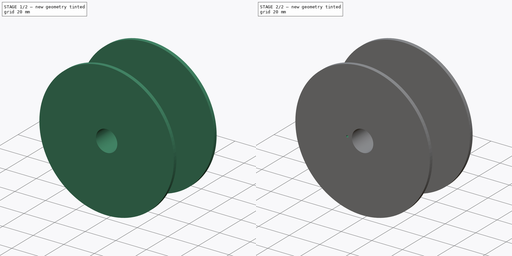
[diagram: build sequence overview — one tinted view per stage of 2, left to right]
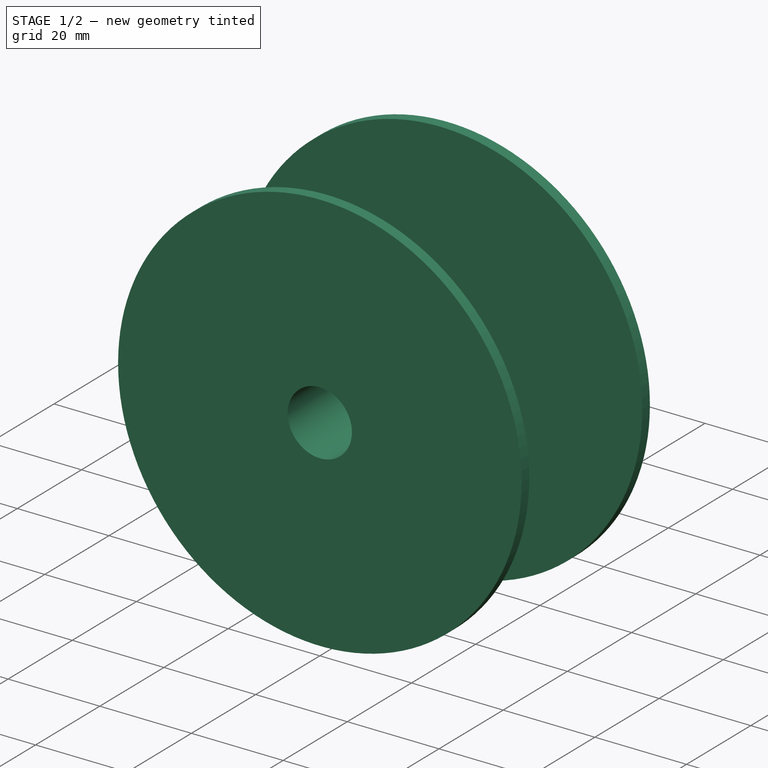
[diagram: stage 1 of 2 — iso view after this stage's code; geometry added in this stage tinted green]
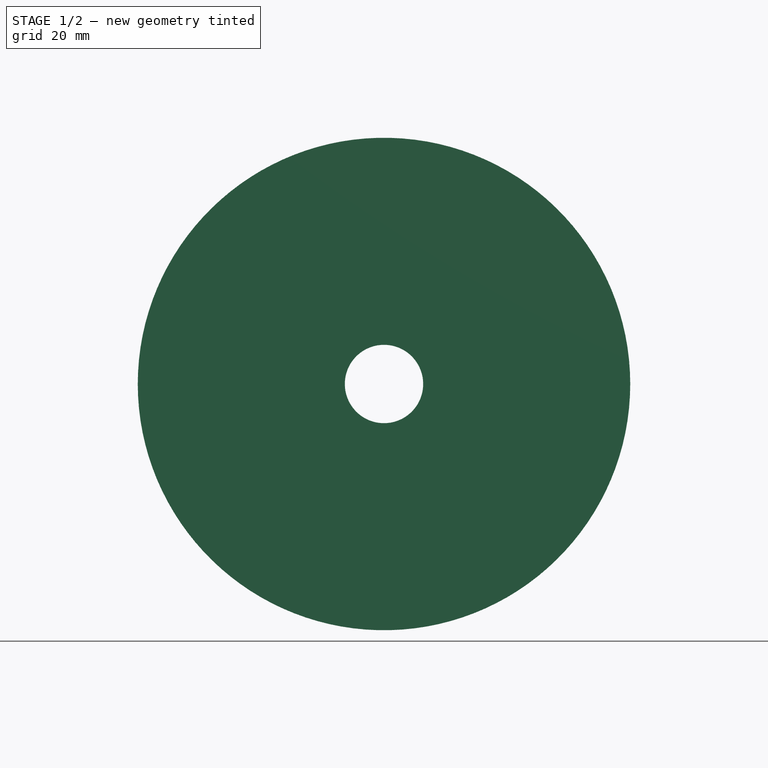
[diagram: stage 1 of 2 — front view after this stage's code; geometry added in this stage tinted green]
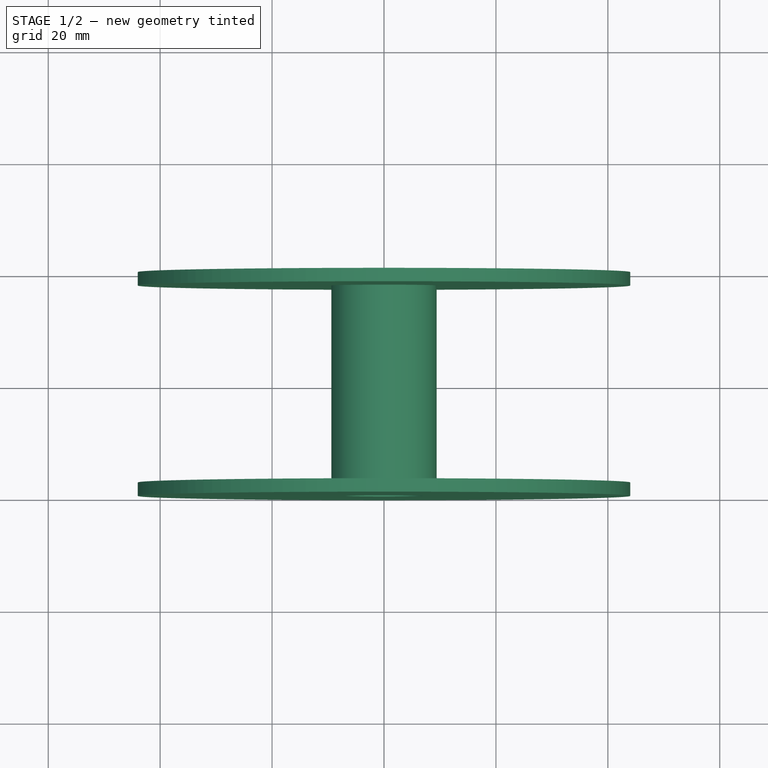
[diagram: stage 1 of 2 — top view after this stage's code; geometry added in this stage tinted green]
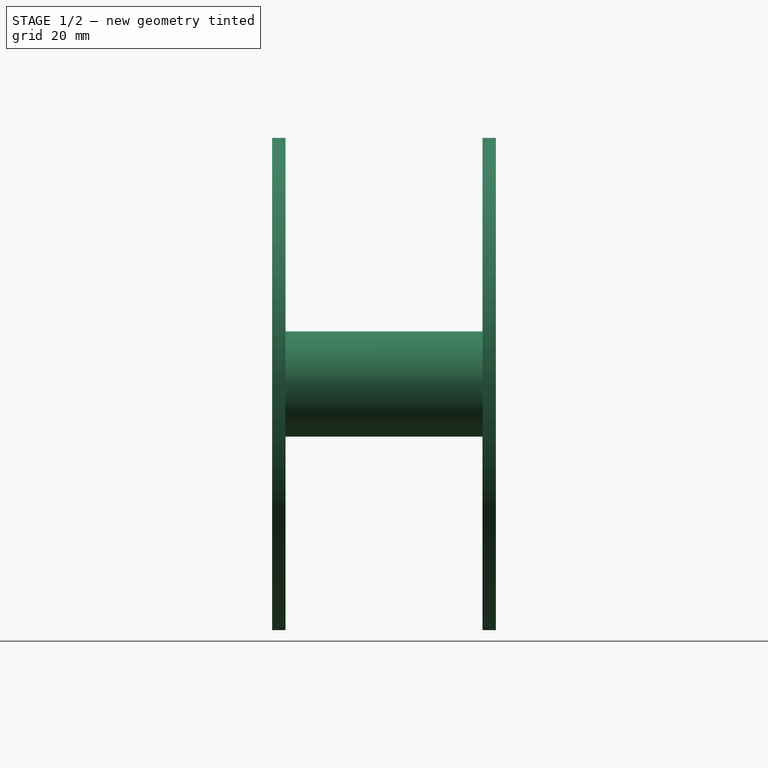
[diagram: stage 1 of 2 — right view after this stage's code; geometry added in this stage tinted green]
FCSTD DOCUMENT  (FreeCAD 0.19R24276 (Git))
Label: CableRoller
License: All rights reserved
LicenseURL: http://en.wikipedia.org/wiki/All_rights_reserved
objects: Sketcher::SketchObject×2, PartDesign::Hole×2, PartDesign::Revolution×1, PartDesign::Body×1
note: 9 computed .brp shape members not serialized (recipe doc carries the construction recipe); baked Part::Feature solids carry a one-line shape summary decoded from their .brp

FEATURE [Sketcher::SketchObject] Sketch
  FullyConstrained = true
  MapMode = 5
  Support = -> [XY_Plane]
  sketch-geometry (8):
    g0: LineSegment StartX=-44 StartY=40 StartZ=0 EndX=0 EndY=40 EndZ=0
    g1: LineSegment StartX=0 StartY=40 StartZ=0 EndX=0 EndY=0 EndZ=0
    g2: LineSegment StartX=0 StartY=0 StartZ=0 EndX=-44 EndY=0 EndZ=0
    g3: LineSegment StartX=-44 StartY=0 StartZ=0 EndX=-44 EndY=2.4 EndZ=0
    g4: LineSegment StartX=-44 StartY=40 StartZ=0 EndX=-44 EndY=37.6 EndZ=0
    g5: LineSegment StartX=-9.4 StartY=2.4 StartZ=0 EndX=-9.4 EndY=37.6 EndZ=0
    g6: LineSegment StartX=-44 StartY=37.6 StartZ=0 EndX=-9.4 EndY=37.6 EndZ=0
    g7: LineSegment StartX=-44 StartY=2.4 StartZ=0 EndX=-9.4 EndY=2.4 EndZ=0
  constraints (23):
    c: Horizontal(g0)
    c: Coincident(g1,g0)
    c: Vertical(g1)
    c: Coincident(g2,g1)
    c: Horizontal(g2)
    c: Coincident(g3,g2)
    c: Vertical(g3)
    c: Coincident(g4,g0)
    c: Vertical(g4)
    c: Vertical(g5)
    c: Distance(g0) = 44
    c: Distance(g2) = 44
    c: Distance(g4) = 2.4
    c: Distance(g3) = 2.4
    c: Coincident(g6,g4)
    c: Coincident(g6,g5)
    c: Coincident(g7,g3)
    c: Coincident(g7,g5)
    c: DistanceX(g5,g0) = 9.4
    c: DistanceY(g5,g5) = 35.2
    c: Distance(g1) = 40
    c: DistanceY(g5,g4) = 0
    c: Coincident(g1,g-1)
FEATURE [PartDesign::Revolution] Revolution
  Angle = 360
  Axis = (0,1,0)
  Base = (0,0,0)
  Profile = -> Sketch
  ReferenceAxis = -> Sketch [V_Axis]
FEATURE [PartDesign::Hole] Hole
  BaseFeature = -> Revolution
  Depth = 40
  DepthType = 0
  Diameter = 14
  DrillForDepth = false
  DrillPoint = 1
  DrillPointAngle = 118
  HoleCutCountersinkAngle = 90
  HoleCutCustomValues = false
  HoleCutDepth = 0
  HoleCutDiameter = 6.1
  HoleCutType = 0
  ModelActualThread = false
  Profile = -> Revolution [Face2]
  Tapered = false
  TaperedAngle = 90
  ThreadAngle = 0
  ThreadClass = 0
  ThreadCutOffInner = 0
  ThreadCutOffOuter = 0
  ThreadDirection = 0
  ThreadFit = 0
  ThreadPitch = 0
  ThreadSize = 0
  ThreadType = 0
  Threaded = false
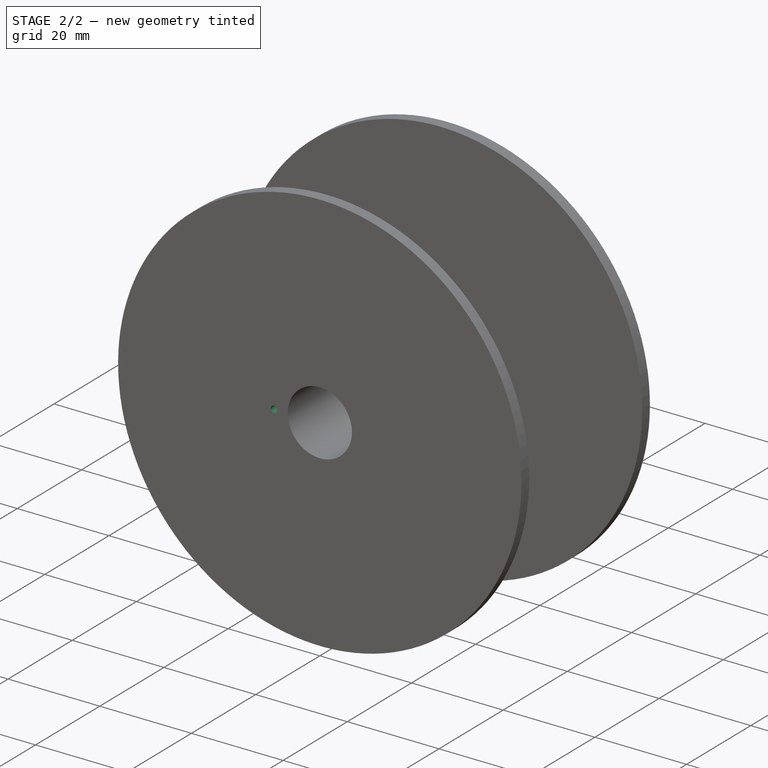
[diagram: stage 2 of 2 — iso view after this stage's code; geometry added in this stage tinted green]
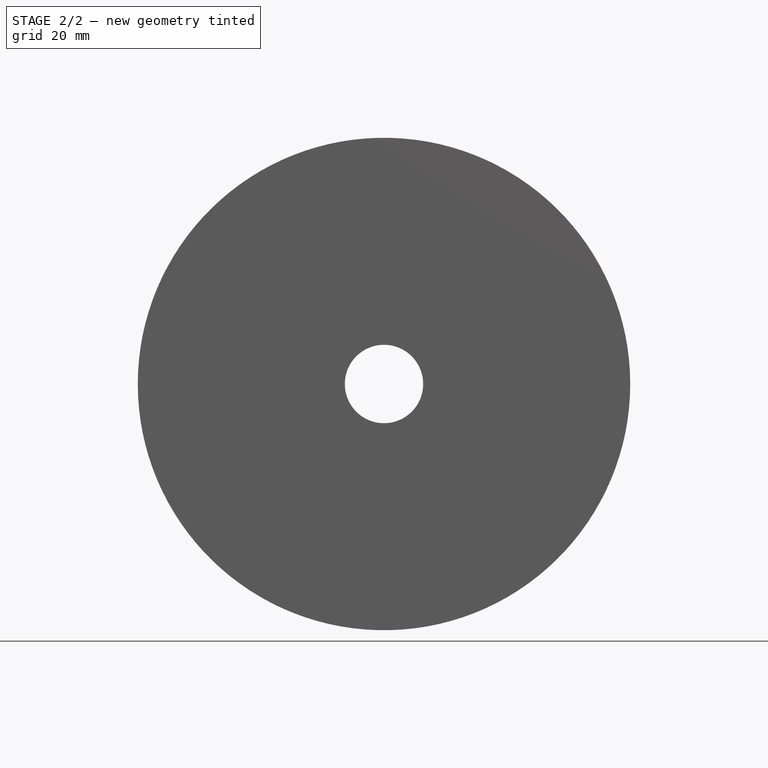
[diagram: stage 2 of 2 — front view after this stage's code; geometry added in this stage tinted green]
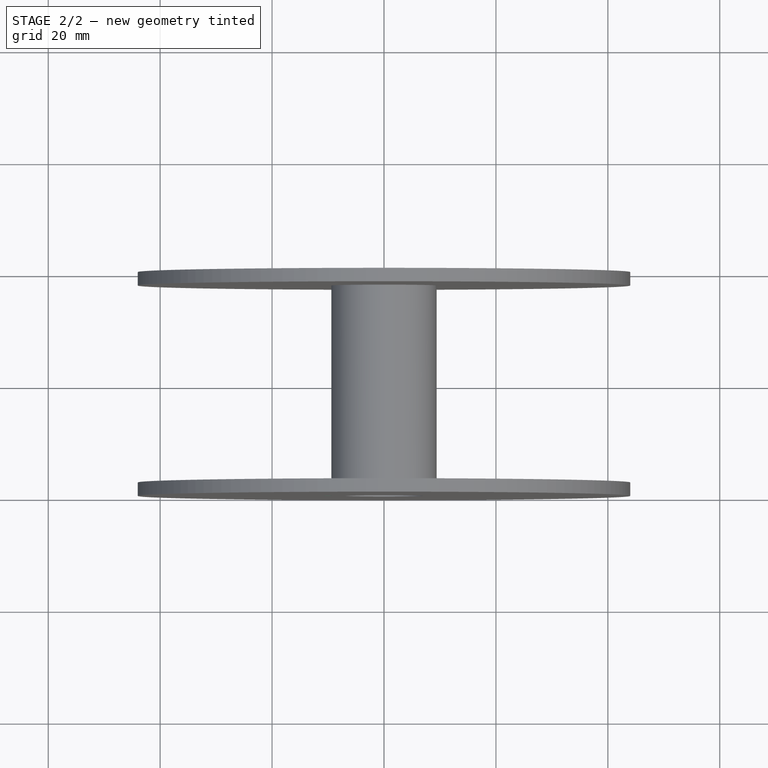
[diagram: stage 2 of 2 — top view after this stage's code; geometry added in this stage tinted green]
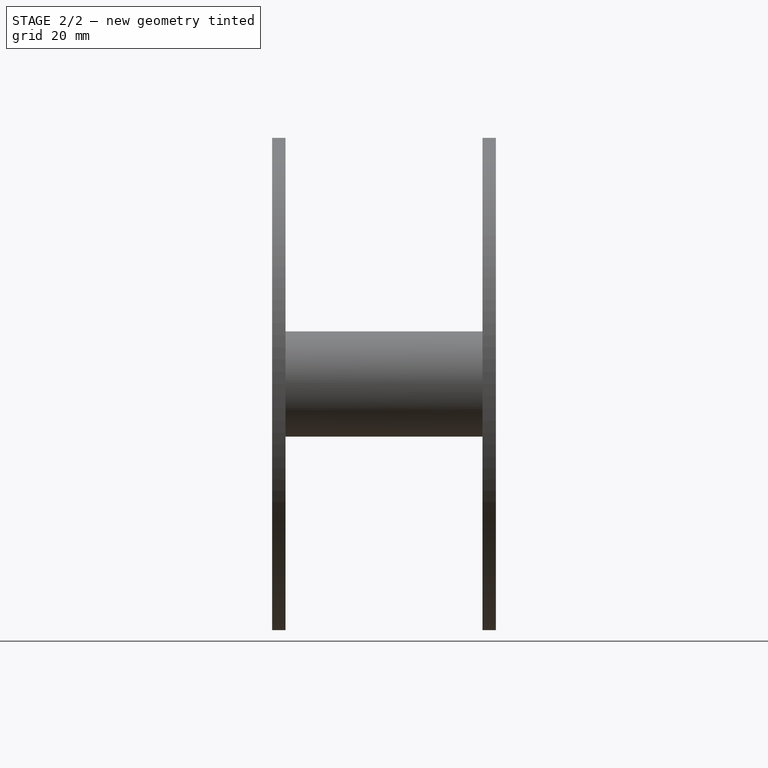
[diagram: stage 2 of 2 — right view after this stage's code; geometry added in this stage tinted green]
FEATURE [Sketcher::SketchObject] Sketch001
  FullyConstrained = false
  MapMode = 5
  Placement = pos=(0,0,0) rot=(1,0,0;1.5708rad)
  Support = -> [XZ_Plane]
  sketch-geometry (1):
    g0: Circle CenterX=-10.0008 CenterY=0 CenterZ=0 NormalX=0 NormalY=0 NormalZ=1 AngleXU=0 Radius=0.610225
  constraints (1):
    c: PointOnObject(g0,g-1)
FEATURE [PartDesign::Hole] Hole001
  BaseFeature = -> Hole
  Depth = 3
  DepthType = 0
  Diameter = 1.4
  DrillForDepth = false
  DrillPoint = 1
  DrillPointAngle = 118
  HoleCutCountersinkAngle = 90
  HoleCutCustomValues = false
  HoleCutDepth = 0
  HoleCutDiameter = 6.1
  HoleCutType = 0
  ModelActualThread = false
  Profile = -> Sketch001
  Tapered = false
  TaperedAngle = 90
  ThreadAngle = 0
  ThreadClass = 0
  ThreadCutOffInner = 0
  ThreadCutOffOuter = 0
  ThreadDirection = 0
  ThreadFit = 0
  ThreadPitch = 0
  ThreadSize = 0
  ThreadType = 0
  Threaded = false
FEATURE [PartDesign::Body] Body
  Group = -> [Sketch,Revolution,Hole,Sketch001,Hole001]
  Origin = -> Origin
  Tip = -> Hole001
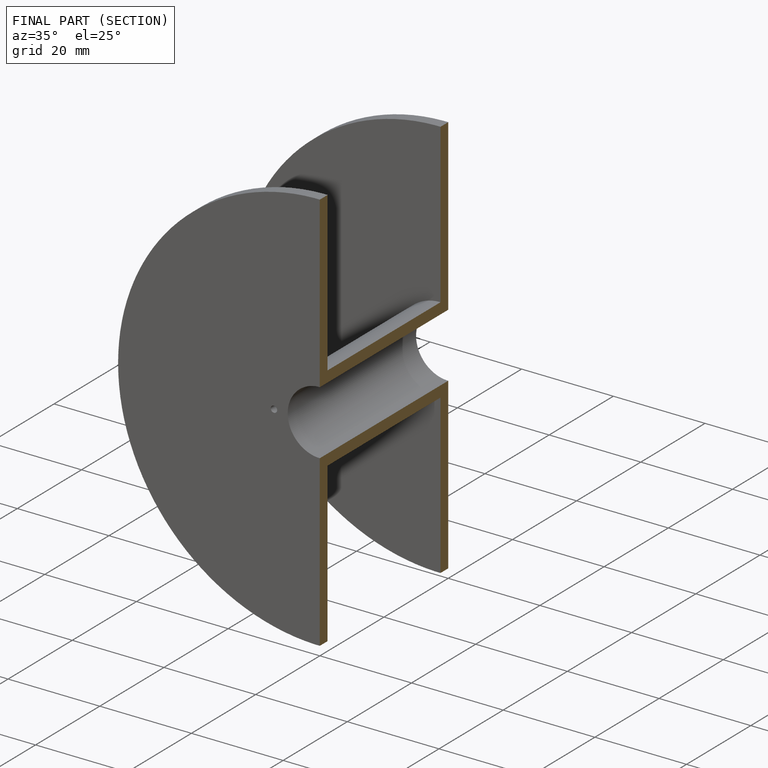
[diagram: finished part — half-section view (interior)]
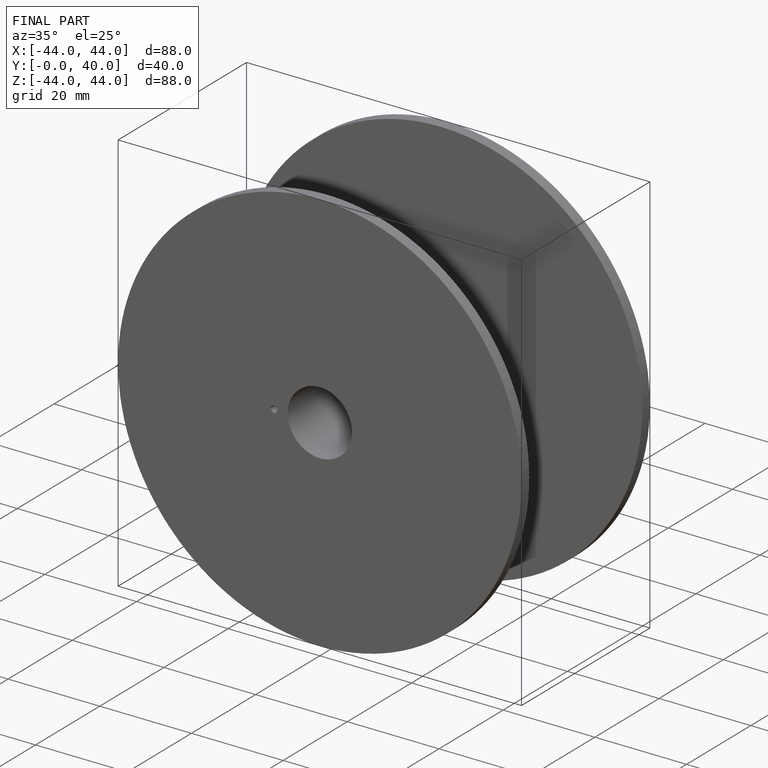
[diagram: finished part — iso view with bounding-box wireframe]
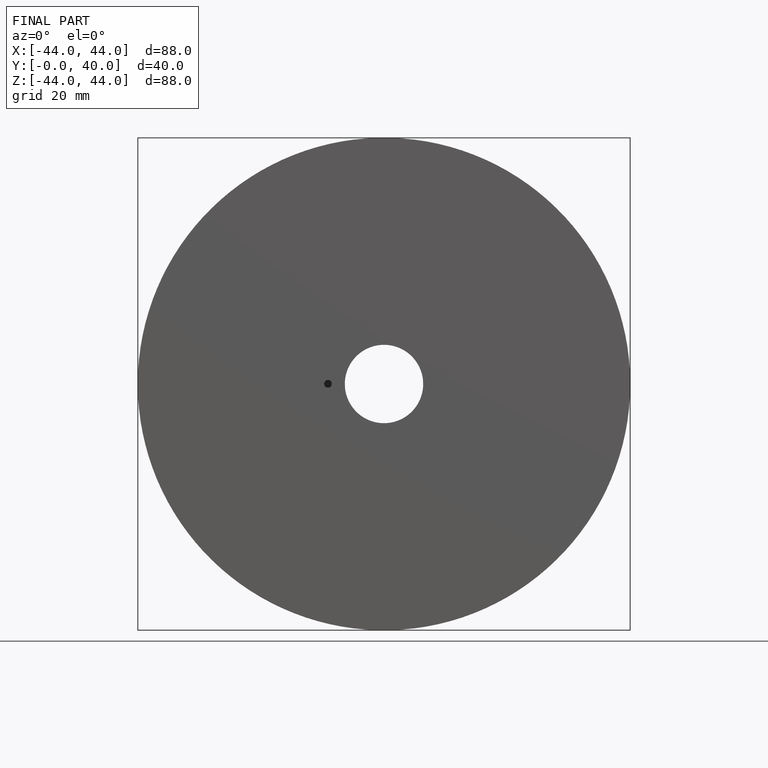
[diagram: finished part — front view with bounding-box wireframe]
